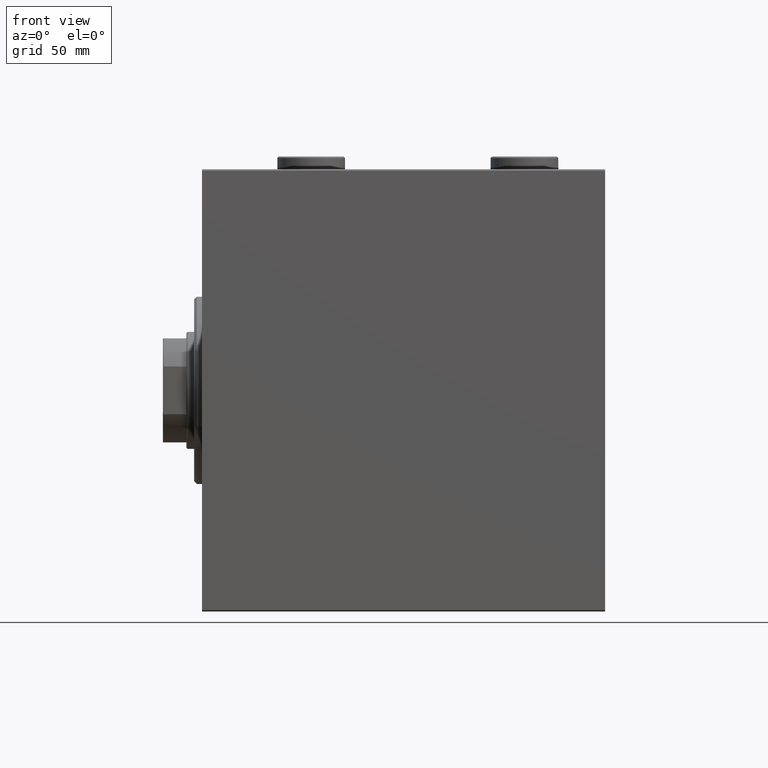
[diagram: clean part render]
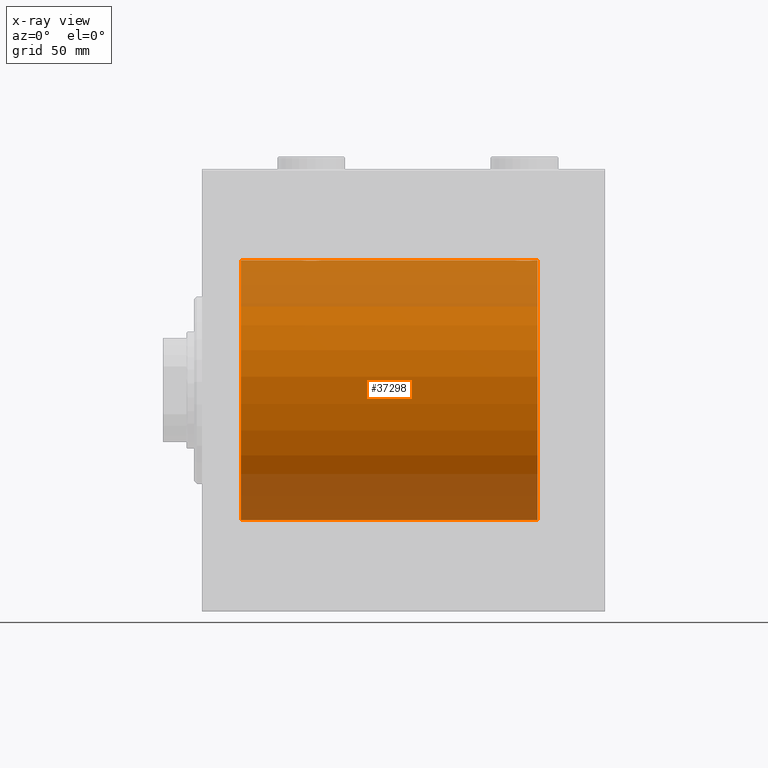
[diagram: x-ray — body ghosted, one internal face saturated and labeled with its STEP entity id]
A machine part, front view, then the same camera in x-ray: the body is ghosted and one INTERNAL B-rep face — a face not visible from any outside direction — is saturated and labeled: STEP entity #37298.
In plain terms, the highlighted cylindrical surface (partial cylindrical patch) has radius 50 mm, axis along (-1, -0, -0).
Its self-contained STEP definition (entity closure, byte-faithful):
#208 = CARTESIAN_POINT ( 'NONE',  ( 37.77689247200999745, -0.5531336717329055075, 49.99769193709644099 ) ) ;
#640 = CARTESIAN_POINT ( 'NONE',  ( 37.96727357902688738, -1.369753890039653310, 49.98188917176553048 ) ) ;
#872 = CARTESIAN_POINT ( 'NONE',  ( 39.40687279114045793, -3.378657745070626106, 49.88595615988430154 ) ) ;
#1040 = DIRECTION ( 'NONE',  ( -1.000000000000000000, -0.000000000000000000, -0.000000000000000000 ) ) ;
#1087 = DIRECTION ( 'NONE',  ( -1.000000000000000000, 0.000000000000000000, 0.000000000000000000 ) ) ;
#1189 = CARTESIAN_POINT ( 'NONE',  ( 125.0973761787903555, -4.115209769591101185, 49.83039196709103891 ) ) ;
#1203 = CARTESIAN_POINT ( 'NONE',  ( 124.2839528702669725, -4.249777379711406233, -49.81906655360197078 ) ) ;
#1435 = CARTESIAN_POINT ( 'NONE',  ( 119.9692020384465962, -1.375411031076050117, -49.98173289062309266 ) ) ;
#1789 = ORIENTED_EDGE ( 'NONE', *, *, #43849, .T. ) ;
#1987 = CARTESIAN_POINT ( 'NONE',  ( 45.37519984081966840, -2.597781786597463061, 49.93300953359122474 ) ) ;
#2070 = CARTESIAN_POINT ( 'NONE',  ( 119.7500000000000000, -2.480336458195905319E-23, 50.00000000000000000 ) ) ;
#2246 = EDGE_CURVE ( 'NONE', #31601, #8315, #4179, .T. ) ;
#2284 = CARTESIAN_POINT ( 'NONE',  ( 123.4459143511985246, -4.222816005855211330, -49.82138837911247009 ) ) ;
#2715 = DIRECTION ( 'NONE',  ( -1.000000000000000000, -0.000000000000000000, -0.000000000000000000 ) ) ;
#2733 = CARTESIAN_POINT ( 'NONE',  ( 37.75000000000001421, -0.2808785465865586972, -50.00000000000001421 ) ) ;
#2961 = CARTESIAN_POINT ( 'NONE',  ( 37.88750298919665482, -1.108337267831482009, -49.98846998601261760 ) ) ;
#3637 = CARTESIAN_POINT ( 'NONE',  ( 37.75000000000000711, -2.480770331693776875E-23, 50.00000000000000000 ) ) ;
#4003 = EDGE_CURVE ( 'NONE', #33169, #26865, #4470, .T. ) ;
#4179 = B_SPLINE_CURVE_WITH_KNOTS ( 'NONE', 3,
 ( #35991, #8229, #18797, #18575, #4348, #43518, #29320, #43303, #11470, #32530, #11927, #15595, #8445, #36430, #32309, #5011, #22686, #19023, #5695, #16729, #34124, #20397, #16960, #26335, #16272, #23816, #30914, #22919, #37118, #27246, #2961, #19946, #2733, #9614 ),
 .UNSPECIFIED., .F., .F.,
 ( 4, 2, 2, 2, 2, 2, 2, 2, 2, 2, 2, 2, 2, 2, 2, 2, 4 ),
 ( 0.01329343152928757349, 0.01412407817529635554, 0.01495472482130513932, 0.01578537146731392310, 0.01661601811332270515, 0.01744666475933148719, 0.01827731140534026924, 0.01910795805134905129, 0.01993860469735783680, 0.02076925134336661885, 0.02159989798937540090, 0.02243054463538418294, 0.02326119128139296499, 0.02409183792740174704, 0.02492248457341052909, 0.02575313121941931460, 0.02658377786542809665 ),
 .UNSPECIFIED. ) ;
#4348 = CARTESIAN_POINT ( 'NONE',  ( 46.03272642097310552, -1.369753890039644872, -49.98188917176551627 ) ) ;
#4470 = LINE ( 'NONE', #18475, #10809 ) ;
#4556 = ORIENTED_EDGE ( 'NONE', *, *, #33242, .T. ) ;
#4733 = CARTESIAN_POINT ( 'NONE',  ( 43.09737617879038396, -4.115209769591109179, 49.83039196709101759 ) ) ;
#4838 = CARTESIAN_POINT ( 'NONE',  ( 120.1789941801477539, -1.881229021238123300, 49.96525240872482954 ) ) ;
#4852 = CARTESIAN_POINT ( 'NONE',  ( 127.8210058198522603, -1.881229021238121302, -49.96525240872482243 ) ) ;
#5011 = CARTESIAN_POINT ( 'NONE',  ( 42.55997867695646164, -4.222042462213109637, -49.82145436824654183 ) ) ;
#5056 = VECTOR ( 'NONE', #7067, 1000.000000000000000 ) ;
#5082 = CARTESIAN_POINT ( 'NONE',  ( 127.6893715567938585, -2.128188802142358504, -49.95522967821975158 ) ) ;
#5300 = CARTESIAN_POINT ( 'NONE',  ( 127.8183924898787183, -1.886522330773407141, 49.96505190380066352 ) ) ;
#5396 = LINE ( 'NONE', #23742, #6611 ) ;
#5520 = CARTESIAN_POINT ( 'NONE',  ( 127.6860283212194958, -2.133925816755176896, 49.95498245321556396 ) ) ;
#5695 = CARTESIAN_POINT ( 'NONE',  ( 41.44591435119851752, -4.222816005855191790, -49.82138837911247720 ) ) ;
#6148 = FACE_OUTER_BOUND ( 'NONE', #37660, .T. ) ;
#6254 = VERTEX_POINT ( 'NONE', #22751 ) ;
#6611 = VECTOR ( 'NONE', #27390, 1000.000000000000000 ) ;
#6841 = DIRECTION ( 'NONE',  ( -1.000000000000000000, -0.000000000000000000, -0.000000000000000000 ) ) ;
#7065 = CARTESIAN_POINT ( 'NONE',  ( 129.0000000000000000, 6.123233995736766085E-15, -50.00000000000000000 ) ) ;
#7067 = DIRECTION ( 'NONE',  ( -1.000000000000000000, -0.000000000000000000, -0.000000000000000000 ) ) ;
#7270 = CARTESIAN_POINT ( 'NONE',  ( 119.7499999999999858, -7.088207743616626371E-15, -50.00000000000000000 ) ) ;
#7292 = CARTESIAN_POINT ( 'NONE',  ( 38.31062844320614147, -2.128188802142366054, 49.95522967821974447 ) ) ;
#7722 = CARTESIAN_POINT ( 'NONE',  ( 41.44002132304352415, -4.222042462213121183, 49.82145436824653473 ) ) ;
#7844 = CARTESIAN_POINT ( 'NONE',  ( 127.3788171726373548, -2.593114840406123722, -49.93325460257639747 ) ) ;
#8176 = CARTESIAN_POINT ( 'NONE',  ( 45.19921927961281938, -2.811461347331102534, 49.92127983148851911 ) ) ;
#8229 = CARTESIAN_POINT ( 'NONE',  ( 46.25000000000000711, -0.2773743941468470586, -50.00000000000000711 ) ) ;
#8314 = CARTESIAN_POINT ( 'NONE',  ( 37.75000000000000711, 3.968053759906218216E-15, -50.00000000000000000 ) ) ;
#8315 = VERTEX_POINT ( 'NONE', #8314 ) ;
#8393 = CARTESIAN_POINT ( 'NONE',  ( 44.12631644875080639, -3.690299572754720536, 49.86386974736160482 ) ) ;
#8445 = CARTESIAN_POINT ( 'NONE',  ( 43.88744739392799943, -3.818052230167706007, -49.85412671291931730 ) ) ;
#8498 = CARTESIAN_POINT ( 'NONE',  ( 119.9672735790268518, -1.369753890039651090, 49.98188917176552337 ) ) ;
#8619 = CARTESIAN_POINT ( 'NONE',  ( 46.03079796155343928, -1.375411031076042789, 49.98173289062309266 ) ) ;
#8659 = DIRECTION ( 'NONE',  ( 0.000000000000000000, 0.000000000000000000, 1.000000000000000000 ) ) ;
#8856 = CARTESIAN_POINT ( 'NONE',  ( 44.58820214676200067, -3.382416624899780011, 49.88570010427955737 ) ) ;
#9200 = CARTESIAN_POINT ( 'NONE',  ( 126.5882021467620007, -3.382416624899772906, 49.88570010427956447 ) ) ;
#9383 = ORIENTED_EDGE ( 'NONE', *, *, #18480, .T. ) ;
#9386 = LINE ( 'NONE', #9622, #38472 ) ;
#9387 = CARTESIAN_POINT ( 'NONE',  ( 120.6248001591803387, -2.597781786597470610, -49.93300953359123184 ) ) ;
#9614 = CARTESIAN_POINT ( 'NONE',  ( 37.75000000000000711, 3.968053759906218216E-15, -50.00000000000000000 ) ) ;
#9622 = CARTESIAN_POINT ( 'NONE',  ( 129.0000000000000000, 6.123233995736766085E-15, -50.00000000000000000 ) ) ;
#10809 = VECTOR ( 'NONE', #1040, 1000.000000000000000 ) ;
#11192 = CARTESIAN_POINT ( 'NONE',  ( 39.18846933484581996, -3.199146701881674382, 49.89793607725462010 ) ) ;
#11320 = ORIENTED_EDGE ( 'NONE', *, *, #29686, .F. ) ;
#11470 = CARTESIAN_POINT ( 'NONE',  ( 45.20303561951989479, -2.807099414226266632, -49.92152599098507437 ) ) ;
#11540 = CARTESIAN_POINT ( 'NONE',  ( 126.5931272088595705, -3.378657745070610563, -49.88595615988430865 ) ) ;
#11752 = CARTESIAN_POINT ( 'NONE',  ( 120.7969643804801194, -2.807099414226265743, 49.92152599098508148 ) ) ;
#11768 = CARTESIAN_POINT ( 'NONE',  ( 123.7227507296208131, -4.250219976861647098, -49.81902879621013369 ) ) ;
#11927 = CARTESIAN_POINT ( 'NONE',  ( 44.59312720885954917, -3.378657745070611895, -49.88595615988430154 ) ) ;
#11991 = CARTESIAN_POINT ( 'NONE',  ( 119.7499999999999574, -0.2808785465865685782, -49.99999999999999289 ) ) ;
#12195 = CARTESIAN_POINT ( 'NONE',  ( 120.6211828273626310, -2.593114840406126387, 49.93325460257641879 ) ) ;
#12431 = CARTESIAN_POINT ( 'NONE',  ( 123.4400213230435099, -4.222042462213115854, 49.82145436824654183 ) ) ;
#12557 = CARTESIAN_POINT ( 'NONE',  ( 46.22242635520781562, -0.5587117664567134989, 49.99763378604802710 ) ) ;
#12845 = CARTESIAN_POINT ( 'NONE',  ( 124.5599786769564474, -4.222042462213124736, -49.82145436824654183 ) ) ;
#14636 = DIRECTION ( 'NONE',  ( 0.000000000000000000, 0.000000000000000000, 1.000000000000000000 ) ) ;
#15188 = CARTESIAN_POINT ( 'NONE',  ( 126.1263164487507709, -3.690299572754712543, 49.86386974736159061 ) ) ;
#15205 = CARTESIAN_POINT ( 'NONE',  ( 122.6328935244542322, -4.033756670430855173, -49.83713703490973757 ) ) ;
#15436 = CARTESIAN_POINT ( 'NONE',  ( 119.8875029891966335, -1.108337267831495776, -49.98846998601261760 ) ) ;
#15541 = CARTESIAN_POINT ( 'NONE',  ( 46.25000000000000000, 3.663389736015513070E-16, 50.00000000000000000 ) ) ;
#15595 = CARTESIAN_POINT ( 'NONE',  ( 44.13136399446156588, -3.687400765141517045, -49.86408552998297239 ) ) ;
#15644 = CARTESIAN_POINT ( 'NONE',  ( 124.5540856488014754, -4.222816005855199784, 49.82138837911247009 ) ) ;
#15783 = VERTEX_POINT ( 'NONE', #7270 ) ;
#15860 = CARTESIAN_POINT ( 'NONE',  ( 128.2499999999999716, -0.2808785465865640263, 50.00000000000000711 ) ) ;
#15985 = CARTESIAN_POINT ( 'NONE',  ( 42.55408564880149669, -4.222816005855206889, 49.82138837911247009 ) ) ;
#16272 = CARTESIAN_POINT ( 'NONE',  ( 39.19302168160690769, -3.203153387937303087, -49.89767833571684008 ) ) ;
#16282 = CARTESIAN_POINT ( 'NONE',  ( 120.8007807203871664, -2.811461347331114968, -49.92127983148853332 ) ) ;
#16504 = CARTESIAN_POINT ( 'NONE',  ( 121.8736835512492149, -3.690299572754720092, -49.86386974736159772 ) ) ;
#16708 = AXIS2_PLACEMENT_3D ( 'NONE', #41689, #27010, #31360 ) ;
#16729 = CARTESIAN_POINT ( 'NONE',  ( 40.90262382120962315, -4.115209769591094968, -49.83039196709103891 ) ) ;
#16734 = ORIENTED_EDGE ( 'NONE', *, *, #33979, .T. ) ;
#16960 = CARTESIAN_POINT ( 'NONE',  ( 39.87368355124921493, -3.690299572754706325, -49.86386974736159772 ) ) ;
#17824 = EDGE_CURVE ( 'NONE', #8315, #20172, #38269, .T. ) ;
#17853 = CARTESIAN_POINT ( 'NONE',  ( 15.00000000000000000, 0.000000000000000000, 0.000000000000000000 ) ) ;
#18174 = CIRCLE ( 'NONE', #16708, 50.00000000000000000 ) ;
#18419 = CARTESIAN_POINT ( 'NONE',  ( 125.3733343657903418, -4.031616700143185739, -49.83731072121798888 ) ) ;
#18475 = CARTESIAN_POINT ( 'NONE',  ( 129.0000000000000000, 0.000000000000000000, 50.00000000000000000 ) ) ;
#18480 = EDGE_CURVE ( 'NONE', #40919, #30488, #9386, .T. ) ;
#18484 = CARTESIAN_POINT ( 'NONE',  ( 129.0000000000000000, 6.123233995736766085E-15, -50.00000000000000000 ) ) ;
#18506 = ORIENTED_EDGE ( 'NONE', *, *, #33312, .F. ) ;
#18575 = CARTESIAN_POINT ( 'NONE',  ( 46.11431913306007147, -1.101350136471736407, -49.98862054280446898 ) ) ;
#18636 = CARTESIAN_POINT ( 'NONE',  ( 127.2030356195199232, -2.807099414226278178, -49.92152599098507437 ) ) ;
#18797 = CARTESIAN_POINT ( 'NONE',  ( 46.22310752799001676, -0.5531336717328987351, -49.99769193709645521 ) ) ;
#18847 = CARTESIAN_POINT ( 'NONE',  ( 124.2772492703791727, -4.250219976861635551, 49.81902879621015501 ) ) ;
#18864 = CARTESIAN_POINT ( 'NONE',  ( 122.9026238212096160, -4.115209769591115396, -49.83039196709103180 ) ) ;
#18969 = CARTESIAN_POINT ( 'NONE',  ( 45.68602832121950286, -2.133925816755177785, 49.95498245321557107 ) ) ;
#19023 = CARTESIAN_POINT ( 'NONE',  ( 41.72275072962082021, -4.250219976861628446, -49.81902879621016211 ) ) ;
#19081 = CARTESIAN_POINT ( 'NONE',  ( 122.6266656342096866, -4.031616700143181298, 49.83731072121800310 ) ) ;
#19304 = CARTESIAN_POINT ( 'NONE',  ( 128.1124970108033096, -1.108337267831484008, 49.98846998601262470 ) ) ;
#19419 = VECTOR ( 'NONE', #6841, 1000.000000000000000 ) ;
#19436 = VERTEX_POINT ( 'NONE', #35213 ) ;
#19661 = CARTESIAN_POINT ( 'NONE',  ( 44.80697831839309231, -3.203153387937317298, 49.89767833571684008 ) ) ;
#19946 = CARTESIAN_POINT ( 'NONE',  ( 37.77757364479219149, -0.5587117664567073927, -49.99763378604802000 ) ) ;
#20172 = VERTEX_POINT ( 'NONE', #30009 ) ;
#20397 = CARTESIAN_POINT ( 'NONE',  ( 40.11782950515556934, -3.820681512513366851, -49.85392475515399724 ) ) ;
#21164 = CIRCLE ( 'NONE', #24807, 50.00000000000000000 ) ;
#21254 = CARTESIAN_POINT ( 'NONE',  ( 128.2499999999999716, 3.913250439338632581E-15, 50.00000000000000000 ) ) ;
#21288 = ORIENTED_EDGE ( 'NONE', *, *, #25475, .T. ) ;
#21299 = CARTESIAN_POINT ( 'NONE',  ( 129.0000000000000000, 0.000000000000000000, 50.00000000000000000 ) ) ;
#21725 = CARTESIAN_POINT ( 'NONE',  ( 41.71604712973302043, -4.249777379711404457, 49.81906655360197789 ) ) ;
#21851 = CARTESIAN_POINT ( 'NONE',  ( 128.2500000000000000, 6.123233970923058748E-15, -50.00000000000000000 ) ) ;
#22296 = CARTESIAN_POINT ( 'NONE',  ( 128.1143191330600359, -1.101350136471739294, -49.98862054280449030 ) ) ;
#22686 = CARTESIAN_POINT ( 'NONE',  ( 42.28395287026697247, -4.249777379711388470, -49.81906655360197789 ) ) ;
#22741 = CARTESIAN_POINT ( 'NONE',  ( 125.8821704948444022, -3.820681512513365963, 49.85392475515399724 ) ) ;
#22751 = CARTESIAN_POINT ( 'NONE',  ( 129.0000000000000000, 0.000000000000000000, 50.00000000000000000 ) ) ;
#22919 = CARTESIAN_POINT ( 'NONE',  ( 38.31397167878049714, -2.133925816755172455, -49.95498245321557818 ) ) ;
#23193 = CARTESIAN_POINT ( 'NONE',  ( 128.2224263552077446, -0.5587117664567078368, 49.99763378604801289 ) ) ;
#23380 = CARTESIAN_POINT ( 'NONE',  ( 128.0327264209731197, -1.369753890039647537, -49.98188917176553048 ) ) ;
#23565 = B_SPLINE_CURVE_WITH_KNOTS ( 'NONE', 3,
 ( #21851, #44446, #39271, #22296, #23380, #4852, #5082, #7844, #18636, #26801, #11540, #35825, #39494, #18419, #33053, #12845, #1203, #11768, #2284, #18864, #15205, #25730, #16504, #39720, #30242, #16282, #9387, #44219, #32823, #1435, #15436, #29390, #11991, #25948 ),
 .UNSPECIFIED., .F., .F.,
 ( 4, 2, 2, 2, 2, 2, 2, 2, 2, 2, 2, 2, 2, 2, 2, 2, 4 ),
 ( 0.01329343152928757522, 0.01412407817529638329, 0.01495472482130519136, 0.01578537146731399943, 0.01661601811332280576, 0.01744666475933161556, 0.01827731140534042190, 0.01910795805134922823, 0.01993860469735799640, 0.02076925134336676457, 0.02159989798937552927, 0.02243054463538429744, 0.02326119128139306214, 0.02409183792740183030, 0.02492248457341059500, 0.02575313121941936317, 0.02658377786542812787 ),
 .UNSPECIFIED. ) ;
#23742 = CARTESIAN_POINT ( 'NONE',  ( 129.0000000000000000, 0.000000000000000000, 50.00000000000000000 ) ) ;
#23816 = CARTESIAN_POINT ( 'NONE',  ( 38.80078072038718062, -2.811461347331092320, -49.92127983148853332 ) ) ;
#24492 = CARTESIAN_POINT ( 'NONE',  ( 40.11255260607202189, -3.818052230167719774, 49.85412671291930309 ) ) ;
#24690 = B_SPLINE_CURVE_WITH_KNOTS ( 'NONE', 3,
 ( #3637, #29035, #208, #38713, #640, #43018, #7292, #25159, #35269, #11192, #872, #31599, #24492, #28591, #42581, #7722, #21725, #35704, #15985, #4733, #26513, #26282, #8393, #8856, #19661, #8176, #1987, #18969, #40509, #8619, #37062, #12557, #32699, #15541 ),
 .UNSPECIFIED., .F., .F.,
 ( 4, 2, 2, 2, 2, 2, 2, 2, 2, 2, 2, 2, 2, 2, 2, 2, 4 ),
 ( 0.01329343152928756135, 0.01412407817529634513, 0.01495472482130512891, 0.01578537146731391269, 0.01661601811332269474, 0.01744666475933148025, 0.01827731140534026577, 0.01910795805134905129, 0.01993860469735783680, 0.02076925134336661885, 0.02159989798937540437, 0.02243054463538418988, 0.02326119128139297193, 0.02409183792740175745, 0.02492248457341054296, 0.02575313121941932848, 0.02658377786542811400 ),
 .UNSPECIFIED. ) ;
#24807 = AXIS2_PLACEMENT_3D ( 'NONE', #17853, #1087, #14636 ) ;
#24996 = VECTOR ( 'NONE', #31634, 1000.000000000000000 ) ;
#25159 = CARTESIAN_POINT ( 'NONE',  ( 38.62118282736263097, -2.593114840406129940, 49.93325460257640458 ) ) ;
#25475 = EDGE_CURVE ( 'NONE', #42797, #40770, #35543, .T. ) ;
#25717 = CARTESIAN_POINT ( 'NONE',  ( 127.1992192796128336, -2.811461347331094984, 49.92127983148852621 ) ) ;
#25730 = CARTESIAN_POINT ( 'NONE',  ( 122.1178295051555693, -3.820681512513391276, -49.85392475515401145 ) ) ;
#25934 = CARTESIAN_POINT ( 'NONE',  ( 128.0307979615534464, -1.375411031076032131, 49.98173289062312818 ) ) ;
#25948 = CARTESIAN_POINT ( 'NONE',  ( 119.7499999999999858, -7.088207743616626371E-15, -50.00000000000000000 ) ) ;
#26155 = CARTESIAN_POINT ( 'NONE',  ( 119.7500000000000000, -2.480336458195905319E-23, 50.00000000000000000 ) ) ;
#26282 = CARTESIAN_POINT ( 'NONE',  ( 43.88217049484444487, -3.820681512513380618, 49.85392475515401856 ) ) ;
#26335 = CARTESIAN_POINT ( 'NONE',  ( 39.41179785323798512, -3.382416624899766244, -49.88570010427955026 ) ) ;
#26513 = CARTESIAN_POINT ( 'NONE',  ( 43.36710647554575360, -4.033756670430848068, 49.83713703490974467 ) ) ;
#26622 = CARTESIAN_POINT ( 'NONE',  ( 121.4068727911404579, -3.378657745070625218, 49.88595615988430865 ) ) ;
#26801 = CARTESIAN_POINT ( 'NONE',  ( 126.8115306651541658, -3.199146701881672605, -49.89793607725461300 ) ) ;
#26865 = VERTEX_POINT ( 'NONE', #27023 ) ;
#27010 = DIRECTION ( 'NONE',  ( -1.000000000000000000, 0.000000000000000000, 0.000000000000000000 ) ) ;
#27023 = CARTESIAN_POINT ( 'NONE',  ( 15.00000000000000000, 0.000000000000000000, 50.00000000000000000 ) ) ;
#27094 = CARTESIAN_POINT ( 'NONE',  ( 128.2500000000000000, 6.123233970923058748E-15, -50.00000000000000000 ) ) ;
#27098 = ORIENTED_EDGE ( 'NONE', *, *, #33323, .T. ) ;
#27143 = ORIENTED_EDGE ( 'NONE', *, *, #4003, .F. ) ;
#27246 = CARTESIAN_POINT ( 'NONE',  ( 37.96920203844656783, -1.375411031076034130, -49.98173289062310687 ) ) ;
#27390 = DIRECTION ( 'NONE',  ( -1.000000000000000000, -0.000000000000000000, -0.000000000000000000 ) ) ;
#27414 = ORIENTED_EDGE ( 'NONE', *, *, #17824, .T. ) ;
#27734 = CARTESIAN_POINT ( 'NONE',  ( 129.0000000000000000, 6.123233995736766085E-15, -50.00000000000000000 ) ) ;
#28007 = CARTESIAN_POINT ( 'NONE',  ( 46.25000000000000000, 6.123233970928975205E-15, -50.00000000000000000 ) ) ;
#28499 = ORIENTED_EDGE ( 'NONE', *, *, #2246, .T. ) ;
#28591 = CARTESIAN_POINT ( 'NONE',  ( 40.62666563420964394, -4.031616700143185739, 49.83731072121799599 ) ) ;
#29035 = CARTESIAN_POINT ( 'NONE',  ( 37.74999999999999289, -0.2773743941468543306, 50.00000000000000000 ) ) ;
#29320 = CARTESIAN_POINT ( 'NONE',  ( 45.68937155679385853, -2.128188802142354508, -49.95522967821975158 ) ) ;
#29390 = CARTESIAN_POINT ( 'NONE',  ( 119.7775736447921844, -0.5587117664567197162, -49.99763378604801289 ) ) ;
#29591 = CARTESIAN_POINT ( 'NONE',  ( 127.3751998408196329, -2.597781786597459952, 49.93300953359122474 ) ) ;
#29686 = EDGE_CURVE ( 'NONE', #40919, #6254, #18174, .T. ) ;
#30009 = CARTESIAN_POINT ( 'NONE',  ( 15.00000000000000000, 6.123233995736766085E-15, -50.00000000000000000 ) ) ;
#30052 = CARTESIAN_POINT ( 'NONE',  ( 125.3671064755457536, -4.033756670430833857, 49.83713703490973757 ) ) ;
#30242 = CARTESIAN_POINT ( 'NONE',  ( 121.1930216816068935, -3.203153387937328400, -49.89767833571685429 ) ) ;
#30488 = VERTEX_POINT ( 'NONE', #27094 ) ;
#30914 = CARTESIAN_POINT ( 'NONE',  ( 38.62480015918035292, -2.597781786597455067, -49.93300953359122474 ) ) ;
#31360 = DIRECTION ( 'NONE',  ( 0.000000000000000000, 0.000000000000000000, 1.000000000000000000 ) ) ;
#31599 = CARTESIAN_POINT ( 'NONE',  ( 39.86863600553844833, -3.687400765141530812, 49.86408552998298660 ) ) ;
#31601 = VERTEX_POINT ( 'NONE', #28007 ) ;
#31634 = DIRECTION ( 'NONE',  ( -1.000000000000000000, -0.000000000000000000, -0.000000000000000000 ) ) ;
#32061 = LINE ( 'NONE', #27734, #24996 ) ;
#32309 = CARTESIAN_POINT ( 'NONE',  ( 43.10323296034215446, -4.113647494206469801, -49.83052139214892406 ) ) ;
#32530 = CARTESIAN_POINT ( 'NONE',  ( 44.81153066515420136, -3.199146701881660171, -49.89793607725462010 ) ) ;
#32699 = CARTESIAN_POINT ( 'NONE',  ( 46.25000000000002132, -0.2808785465865649700, 50.00000000000000711 ) ) ;
#32809 = CARTESIAN_POINT ( 'NONE',  ( 122.8967670396578455, -4.113647494206476019, 49.83052139214893117 ) ) ;
#32823 = CARTESIAN_POINT ( 'NONE',  ( 120.1816075101212533, -1.886522330773424017, -49.96505190380064931 ) ) ;
#33053 = CARTESIAN_POINT ( 'NONE',  ( 125.1032329603421260, -4.113647494206484900, -49.83052139214890985 ) ) ;
#33169 = VERTEX_POINT ( 'NONE', #41243 ) ;
#33242 = EDGE_CURVE ( 'NONE', #20172, #26865, #21164, .T. ) ;
#33258 = CARTESIAN_POINT ( 'NONE',  ( 119.8856808669399214, -1.101350136471741736, 49.98862054280450451 ) ) ;
#33312 = EDGE_CURVE ( 'NONE', #42797, #19436, #39148, .T. ) ;
#33323 = EDGE_CURVE ( 'NONE', #33169, #19436, #24690, .T. ) ;
#33378 = ORIENTED_EDGE ( 'NONE', *, *, #36246, .F. ) ;
#33979 = EDGE_CURVE ( 'NONE', #30488, #15783, #23565, .T. ) ;
#34107 = CARTESIAN_POINT ( 'NONE',  ( 129.0000000000000000, 0.000000000000000000, 0.000000000000000000 ) ) ;
#34124 = CARTESIAN_POINT ( 'NONE',  ( 40.63289352445425351, -4.033756670430834745, -49.83713703490973757 ) ) ;
#35213 = CARTESIAN_POINT ( 'NONE',  ( 46.25000000000000000, 3.663389736015513070E-16, 50.00000000000000000 ) ) ;
#35269 = CARTESIAN_POINT ( 'NONE',  ( 38.79696438048011942, -2.807099414226279510, 49.92152599098507437 ) ) ;
#35543 = B_SPLINE_CURVE_WITH_KNOTS ( 'NONE', 3,
 ( #26155, #36484, #36256, #33258, #8498, #4838, #43801, #12195, #11752, #43570, #26622, #40611, #40151, #19081, #32809, #12431, #36939, #18847, #15644, #1189, #30052, #22741, #15188, #9200, #44038, #25717, #29591, #5520, #5300, #25934, #19304, #23193, #15860, #39707 ),
 .UNSPECIFIED., .F., .F.,
 ( 4, 2, 2, 2, 2, 2, 2, 2, 2, 2, 2, 2, 2, 2, 2, 2, 4 ),
 ( 0.01329343152928754920, 0.01412407817529631564, 0.01495472482130508207, 0.01578537146731384677, 0.01661601811332261494, 0.01744666475933137964, 0.01827731140534014781, 0.01910795805134891251, 0.01993860469735767721, 0.02076925134336644538, 0.02159989798937524824, 0.02243054463538405804, 0.02326119128139286785, 0.02409183792740167418, 0.02492248457341048051, 0.02575313121941928685, 0.02658377786542809318 ),
 .UNSPECIFIED. ) ;
#35704 = CARTESIAN_POINT ( 'NONE',  ( 42.27724927037918690, -4.250219976861641769, 49.81902879621012659 ) ) ;
#35825 = CARTESIAN_POINT ( 'NONE',  ( 126.1313639944615659, -3.687400765141519710, -49.86408552998299371 ) ) ;
#35991 = CARTESIAN_POINT ( 'NONE',  ( 46.25000000000000000, 6.123233970928975205E-15, -50.00000000000000000 ) ) ;
#36246 = EDGE_CURVE ( 'NONE', #6254, #40770, #5396, .T. ) ;
#36256 = CARTESIAN_POINT ( 'NONE',  ( 119.7768924720099903, -0.5531336717329042862, 49.99769193709643389 ) ) ;
#36430 = CARTESIAN_POINT ( 'NONE',  ( 43.37333436579038448, -4.031616700143171528, -49.83731072121799599 ) ) ;
#36484 = CARTESIAN_POINT ( 'NONE',  ( 119.7500000000000142, -0.2773743941468518326, 50.00000000000002132 ) ) ;
#36647 = CYLINDRICAL_SURFACE ( 'NONE', #42504, 50.00000000000000000 ) ;
#36894 = DIRECTION ( 'NONE',  ( -1.000000000000000000, -0.000000000000000000, -0.000000000000000000 ) ) ;
#36939 = CARTESIAN_POINT ( 'NONE',  ( 123.7160471297329991, -4.249777379711395575, 49.81906655360197789 ) ) ;
#37062 = CARTESIAN_POINT ( 'NONE',  ( 46.11249701080335939, -1.108337267831489337, 49.98846998601261760 ) ) ;
#37118 = CARTESIAN_POINT ( 'NONE',  ( 38.18160751012128884, -1.886522330773408695, -49.96505190380065642 ) ) ;
#37298 = ADVANCED_FACE ( 'NONE', ( #6148 ), #36647, .F. ) ;
#37660 = EDGE_LOOP ( 'NONE', ( #11320, #9383, #16734, #1789, #28499, #27414, #4556, #27143, #27098, #18506, #21288, #33378 ) ) ;
#38269 = LINE ( 'NONE', #7065, #19419 ) ;
#38472 = VECTOR ( 'NONE', #36894, 1000.000000000000000 ) ;
#38713 = CARTESIAN_POINT ( 'NONE',  ( 37.88568086693991432, -1.101350136471744623, 49.98862054280448319 ) ) ;
#39148 = LINE ( 'NONE', #21299, #5056 ) ;
#39271 = CARTESIAN_POINT ( 'NONE',  ( 128.2231075279899812, -0.5531336717328988462, -49.99769193709644099 ) ) ;
#39494 = CARTESIAN_POINT ( 'NONE',  ( 125.8874473939279568, -3.818052230167718442, -49.85412671291930309 ) ) ;
#39707 = CARTESIAN_POINT ( 'NONE',  ( 128.2499999999999716, 3.913250439338632581E-15, 50.00000000000000000 ) ) ;
#39720 = CARTESIAN_POINT ( 'NONE',  ( 121.4117978532379993, -3.382416624899779567, -49.88570010427956447 ) ) ;
#40151 = CARTESIAN_POINT ( 'NONE',  ( 122.1125526060720006, -3.818052230167713557, 49.85412671291929598 ) ) ;
#40509 = CARTESIAN_POINT ( 'NONE',  ( 45.81839248987872537, -1.886522330773416911, 49.96505190380066352 ) ) ;
#40611 = CARTESIAN_POINT ( 'NONE',  ( 121.8686360055384625, -3.687400765141528147, 49.86408552998296528 ) ) ;
#40770 = VERTEX_POINT ( 'NONE', #21254 ) ;
#40919 = VERTEX_POINT ( 'NONE', #18484 ) ;
#41243 = CARTESIAN_POINT ( 'NONE',  ( 37.75000000000000711, -2.480770331693776875E-23, 50.00000000000000000 ) ) ;
#41689 = CARTESIAN_POINT ( 'NONE',  ( 129.0000000000000000, 0.000000000000000000, 0.000000000000000000 ) ) ;
#42504 = AXIS2_PLACEMENT_3D ( 'NONE', #34107, #2715, #8659 ) ;
#42581 = CARTESIAN_POINT ( 'NONE',  ( 40.89676703965784554, -4.113647494206482236, 49.83052139214891696 ) ) ;
#42797 = VERTEX_POINT ( 'NONE', #2070 ) ;
#43018 = CARTESIAN_POINT ( 'NONE',  ( 38.17899418014773261, -1.881229021238126631, 49.96525240872482954 ) ) ;
#43303 = CARTESIAN_POINT ( 'NONE',  ( 45.37881717263738324, -2.593114840406115729, -49.93325460257640458 ) ) ;
#43518 = CARTESIAN_POINT ( 'NONE',  ( 45.82100581985224608, -1.881229021238117749, -49.96525240872482954 ) ) ;
#43570 = CARTESIAN_POINT ( 'NONE',  ( 121.1884693348457915, -3.199146701881660171, 49.89793607725461300 ) ) ;
#43801 = CARTESIAN_POINT ( 'NONE',  ( 120.3106284432061273, -2.128188802142361613, 49.95522967821974447 ) ) ;
#43849 = EDGE_CURVE ( 'NONE', #15783, #31601, #32061, .T. ) ;
#44038 = CARTESIAN_POINT ( 'NONE',  ( 126.8069783183931065, -3.203153387937309304, 49.89767833571684008 ) ) ;
#44219 = CARTESIAN_POINT ( 'NONE',  ( 120.3139716787804616, -2.133925816755186666, -49.95498245321557107 ) ) ;
#44446 = CARTESIAN_POINT ( 'NONE',  ( 128.2500000000000000, -0.2773743941468459484, -50.00000000000001421 ) ) ;